MODEL STATE_BIO_MASTER
KIND library
BLOCK [SubSystem] PUM_BIO_MASTER
  Ports = [2, 3]
  RequestExecContextInheritance = off
  SID = 1
  Variant = off
BLOCK [Inport] PUM_BIO_MASTER/BIMON
  IconDisplay = Port number
  Port = 2
  SID = 3
BLOCK [Outport] PUM_BIO_MASTER/BO
  IconDisplay = Port number
  Port = 3
  SID = 14
BLOCK [Reference] PUM_BIO_MASTER/CTENABLE  REF=cdsEpicsIn/Subsystem
  AttributesFormatString = %<Tag>
  Description = Purpose:                                                                              \nCreate an EPICS input channel connection to the FE realtime controls.                 \n                                                                                      \nOperation:                                                                            \nOutputs value from an EPICS ai record. Value is ...<+266ch>  <repeated x41 — deduplicated; at blocks: CTENABLE, MSDELAYOFF, MSDELAYON, RMSRESET, STATEREQ, LL_CTENABLE, LL_MSDELAYOFF, LL_MSDELAYON, LL_STATEREQ, LR_CTENABLE, LR_MSDELAYOFF, LR_MSDELAYON, LR_STATEREQ, UL_CTENABLE, UL_MSDELAYOFF, UL_MSDELAYON, +5 more>
  Ports = [0, 1]
  SID = 4
  SourceBlock = cdsEpicsIn/Subsystem
  SourceType = SubSystem
  Tag = cdsEpicsIn
BLOCK [Outport] PUM_BIO_MASTER/CTRL
  IconDisplay = Port number
  Port = 2
  SID = 13
BLOCK [Constant] PUM_BIO_MASTER/Constant
  SID = 94
  Value = 4
BLOCK [Demux] PUM_BIO_MASTER/Demux
  DisplayOption = bar
  Outputs = 3
  Ports = [1, 3]
  SID = 5
BLOCK [Inport] PUM_BIO_MASTER/ISCREQ
  IconDisplay = Port number
  SID = 2
BLOCK [Outport] PUM_BIO_MASTER/MASK
  IconDisplay = Port number
  SID = 12
BLOCK [Reference] PUM_BIO_MASTER/MON  REF=cdsEpicsOut/Subsystem
  AttributesFormatString = %<Tag>
  Description = Purpose:                                          \nOutput a FE signal to an EPICS channel.           \n                                                  \nOperation:                                        \nTakes input value and passes it to EPICS record.  \n                                                  \nUsage:                                            \nName the part with the desired EPICS...<+14ch>  <repeated x7 — deduplicated; at blocks: MON>
  Ports = [1, 1]
  SID = 6
  SourceBlock = cdsEpicsOut/Subsystem
  SourceType = SubSystem
  Tag = cdsEpicsOutput
BLOCK [Reference] PUM_BIO_MASTER/MSDELAYOFF  REF=cdsEpicsIn/Subsystem
  AttributesFormatString = %<Tag>
  Ports = [0, 1]
  SID = 60
  SourceBlock = cdsEpicsIn/Subsystem
  SourceType = SubSystem
  Tag = cdsEpicsIn
BLOCK [Reference] PUM_BIO_MASTER/MSDELAYON  REF=cdsEpicsIn/Subsystem
  AttributesFormatString = %<Tag>
  Ports = [0, 1]
  SID = 7
  SourceBlock = cdsEpicsIn/Subsystem
  SourceType = SubSystem
  Tag = cdsEpicsIn
BLOCK [Mux] PUM_BIO_MASTER/Mux
  DisplayOption = bar
  Inputs = 6
  Ports = [6, 1]
  SID = 8
BLOCK [Reference] PUM_BIO_MASTER/PUM  REF=cdsFunctionCall/Subsystem
  AttributesFormatString = %<Tag>
  Description = inline PUM $SUS_SRC/CD_STATE_MACHINE.c
  Ports = [1, 1]
  SID = 9
  SourceBlock = cdsFunctionCall/Subsystem
  SourceType = SubSystem
  Tag = cdsFunctionCall
BLOCK [Reference] PUM_BIO_MASTER/RMSRESET  REF=cdsEpicsIn/Subsystem
  AttributesFormatString = %<Tag>
  Ports = [0, 1]
  SID = 10
  SourceBlock = cdsEpicsIn/Subsystem
  SourceType = SubSystem
  Tag = cdsEpicsIn
BLOCK [Reference] PUM_BIO_MASTER/STATEREQ  REF=cdsEpicsIn/Subsystem
  AttributesFormatString = %<Tag>
  Ports = [0, 1]
  SID = 11
  SourceBlock = cdsEpicsIn/Subsystem
  SourceType = SubSystem
  Tag = cdsEpicsIn
BLOCK [Reference] PUM_BIO_MASTER/lshift  REF=cdsBitwise/Subsystem
  AttributesFormatString = %<Tag>
  Ports = [2, 1]
  SID = 95
  SourceBlock = cdsBitwise/Subsystem
  SourceType = SubSystem
  Tag = cdsBitwise
BLOCK [Reference] PUM_BIO_MASTER/lshift1  REF=cdsBitwise/Subsystem
  AttributesFormatString = %<Tag>
  Ports = [2, 1]
  SID = 96
  SourceBlock = cdsBitwise/Subsystem
  SourceType = SubSystem
  Tag = cdsBitwise
BLOCK [Reference] PUM_BIO_MASTER/lshift2  REF=cdsBitwise/Subsystem
  AttributesFormatString = %<Tag>
  Ports = [2, 1]
  SID = 97
  SourceBlock = cdsBitwise/Subsystem
  SourceType = SubSystem
  Tag = cdsBitwise
BLOCK [Reference] PUM_BIO_MASTER/or  REF=cdsBitwise/Subsystem
  AttributesFormatString = %<Tag>
  Ports = [2, 1]
  SID = 98
  SourceBlock = cdsBitwise/Subsystem
  SourceType = SubSystem
  Tag = cdsBitwise
BLOCK [Reference] PUM_BIO_MASTER/or1  REF=cdsBitwise/Subsystem
  AttributesFormatString = %<Tag>
  Ports = [2, 1]
  SID = 99
  SourceBlock = cdsBitwise/Subsystem
  SourceType = SubSystem
  Tag = cdsBitwise
BLOCK [Reference] PUM_BIO_MASTER/or2  REF=cdsBitwise/Subsystem
  AttributesFormatString = %<Tag>
  Ports = [2, 1]
  SID = 100
  SourceBlock = cdsBitwise/Subsystem
  SourceType = SubSystem
  Tag = cdsBitwise
BLOCK [SubSystem] SINGLE_BIO_MASTER
  Ports = [2, 3]
  RequestExecContextInheritance = off
  SID = 101
  Variant = off
BLOCK [Inport] SINGLE_BIO_MASTER/BIMON
  IconDisplay = Port number
  Port = 2
  SID = 103
BLOCK [Outport] SINGLE_BIO_MASTER/BO
  IconDisplay = Port number
  Port = 3
  SID = 125
BLOCK [Reference] SINGLE_BIO_MASTER/CTENABLE  REF=cdsEpicsIn/Subsystem
  AttributesFormatString = %<Tag>
  Ports = [0, 1]
  SID = 104
  SourceBlock = cdsEpicsIn/Subsystem
  SourceType = SubSystem
  Tag = cdsEpicsIn
BLOCK [Outport] SINGLE_BIO_MASTER/CTRL
  IconDisplay = Port number
  Port = 2
  SID = 124
BLOCK [Constant] SINGLE_BIO_MASTER/Constant
  SID = 105
  Value = 2
BLOCK [Demux] SINGLE_BIO_MASTER/Demux
  DisplayOption = bar
  Outputs = 3
  Ports = [1, 3]
  SID = 106
BLOCK [Inport] SINGLE_BIO_MASTER/ISCREQ
  IconDisplay = Port number
  SID = 102
BLOCK [Outport] SINGLE_BIO_MASTER/MASK
  IconDisplay = Port number
  SID = 123
BLOCK [Reference] SINGLE_BIO_MASTER/MON  REF=cdsEpicsOut/Subsystem
  AttributesFormatString = %<Tag>
  Ports = [1, 1]
  SID = 107
  SourceBlock = cdsEpicsOut/Subsystem
  SourceType = SubSystem
  Tag = cdsEpicsOutput
BLOCK [Reference] SINGLE_BIO_MASTER/MSDELAYOFF  REF=cdsEpicsIn/Subsystem
  AttributesFormatString = %<Tag>
  Ports = [0, 1]
  SID = 108
  SourceBlock = cdsEpicsIn/Subsystem
  SourceType = SubSystem
  Tag = cdsEpicsIn
BLOCK [Reference] SINGLE_BIO_MASTER/MSDELAYON  REF=cdsEpicsIn/Subsystem
  AttributesFormatString = %<Tag>
  Ports = [0, 1]
  SID = 109
  SourceBlock = cdsEpicsIn/Subsystem
  SourceType = SubSystem
  Tag = cdsEpicsIn
BLOCK [Mux] SINGLE_BIO_MASTER/Mux
  DisplayOption = bar
  Inputs = 5
  Ports = [5, 1]
  SID = 110
BLOCK [Reference] SINGLE_BIO_MASTER/SINGLE  REF=cdsFunctionCall/Subsystem
  AttributesFormatString = %<Tag>
  Description = inline SINGLE $SUS_SRC/CD_STATE_MACHINE.c
  Ports = [1, 1]
  SID = 112
  SourceBlock = cdsFunctionCall/Subsystem
  SourceType = SubSystem
  Tag = cdsFunctionCall
BLOCK [Reference] SINGLE_BIO_MASTER/STATEREQ  REF=cdsEpicsIn/Subsystem
  AttributesFormatString = %<Tag>
  Ports = [0, 1]
  SID = 111
  SourceBlock = cdsEpicsIn/Subsystem
  SourceType = SubSystem
  Tag = cdsEpicsIn
BLOCK [Reference] SINGLE_BIO_MASTER/lshift  REF=cdsBitwise/Subsystem
  AttributesFormatString = %<Tag>
  Ports = [2, 1]
  SID = 113
  SourceBlock = cdsBitwise/Subsystem
  SourceType = SubSystem
  Tag = cdsBitwise
BLOCK [Reference] SINGLE_BIO_MASTER/lshift1  REF=cdsBitwise/Subsystem
  AttributesFormatString = %<Tag>
  Ports = [2, 1]
  SID = 114
  SourceBlock = cdsBitwise/Subsystem
  SourceType = SubSystem
  Tag = cdsBitwise
BLOCK [Reference] SINGLE_BIO_MASTER/lshift2  REF=cdsBitwise/Subsystem
  AttributesFormatString = %<Tag>
  Ports = [2, 1]
  SID = 115
  SourceBlock = cdsBitwise/Subsystem
  SourceType = SubSystem
  Tag = cdsBitwise
BLOCK [Reference] SINGLE_BIO_MASTER/or  REF=cdsBitwise/Subsystem
  AttributesFormatString = %<Tag>
  Ports = [2, 1]
  SID = 118
  SourceBlock = cdsBitwise/Subsystem
  SourceType = SubSystem
  Tag = cdsBitwise
BLOCK [Reference] SINGLE_BIO_MASTER/or1  REF=cdsBitwise/Subsystem
  AttributesFormatString = %<Tag>
  Ports = [2, 1]
  SID = 119
  SourceBlock = cdsBitwise/Subsystem
  SourceType = SubSystem
  Tag = cdsBitwise
BLOCK [Reference] SINGLE_BIO_MASTER/or2  REF=cdsBitwise/Subsystem
  AttributesFormatString = %<Tag>
  Ports = [2, 1]
  SID = 120
  SourceBlock = cdsBitwise/Subsystem
  SourceType = SubSystem
  Tag = cdsBitwise
BLOCK [SubSystem] TACQ_BIO_MASTER
  Ports = [2, 3]
  RequestExecContextInheritance = off
  SID = 15
  Variant = off
BLOCK [Inport] TACQ_BIO_MASTER/BIMON
  IconDisplay = Port number
  Port = 2
  SID = 17
BLOCK [Outport] TACQ_BIO_MASTER/BO
  IconDisplay = Port number
  Port = 3
  SID = 86
BLOCK [Reference] TACQ_BIO_MASTER/CTENABLE  REF=cdsEpicsIn/Subsystem
  AttributesFormatString = %<Tag>
  Ports = [0, 1]
  SID = 18
  SourceBlock = cdsEpicsIn/Subsystem
  SourceType = SubSystem
  Tag = cdsEpicsIn
BLOCK [Outport] TACQ_BIO_MASTER/CTRL
  IconDisplay = Port number
  Port = 2
  SID = 26
BLOCK [Constant] TACQ_BIO_MASTER/Constant
  SID = 75
  Value = 3
BLOCK [Demux] TACQ_BIO_MASTER/Demux
  DisplayOption = bar
  Outputs = 3
  Ports = [1, 3]
  SID = 19
BLOCK [Inport] TACQ_BIO_MASTER/ISCREQ
  IconDisplay = Port number
  SID = 16
BLOCK [Outport] TACQ_BIO_MASTER/MASK
  IconDisplay = Port number
  SID = 25
BLOCK [Reference] TACQ_BIO_MASTER/MON  REF=cdsEpicsOut/Subsystem
  AttributesFormatString = %<Tag>
  Ports = [1, 1]
  SID = 20
  SourceBlock = cdsEpicsOut/Subsystem
  SourceType = SubSystem
  Tag = cdsEpicsOutput
BLOCK [Reference] TACQ_BIO_MASTER/MSDELAYOFF  REF=cdsEpicsIn/Subsystem
  AttributesFormatString = %<Tag>
  Ports = [0, 1]
  SID = 58
  SourceBlock = cdsEpicsIn/Subsystem
  SourceType = SubSystem
  Tag = cdsEpicsIn
BLOCK [Reference] TACQ_BIO_MASTER/MSDELAYON  REF=cdsEpicsIn/Subsystem
  AttributesFormatString = %<Tag>
  Ports = [0, 1]
  SID = 21
  SourceBlock = cdsEpicsIn/Subsystem
  SourceType = SubSystem
  Tag = cdsEpicsIn
BLOCK [Mux] TACQ_BIO_MASTER/Mux
  DisplayOption = bar
  Inputs = 5
  Ports = [5, 1]
  SID = 22
BLOCK [Reference] TACQ_BIO_MASTER/STATEREQ  REF=cdsEpicsIn/Subsystem
  AttributesFormatString = %<Tag>
  Ports = [0, 1]
  SID = 23
  SourceBlock = cdsEpicsIn/Subsystem
  SourceType = SubSystem
  Tag = cdsEpicsIn
BLOCK [Reference] TACQ_BIO_MASTER/TACQ  REF=cdsFunctionCall/Subsystem
  AttributesFormatString = %<Tag>
  Description = inline TACQ <path>
  Ports = [1, 1]
  SID = 24
  SourceBlock = cdsFunctionCall/Subsystem
  SourceType = SubSystem
  Tag = cdsFunctionCall
BLOCK [Reference] TACQ_BIO_MASTER/lshift  REF=cdsBitwise/Subsystem
  AttributesFormatString = %<Tag>
  Ports = [2, 1]
  SID = 76
  SourceBlock = cdsBitwise/Subsystem
  SourceType = SubSystem
  Tag = cdsBitwise
BLOCK [Reference] TACQ_BIO_MASTER/lshift1  REF=cdsBitwise/Subsystem
  AttributesFormatString = %<Tag>
  Ports = [2, 1]
  SID = 77
  SourceBlock = cdsBitwise/Subsystem
  SourceType = SubSystem
  Tag = cdsBitwise
BLOCK [Reference] TACQ_BIO_MASTER/lshift2  REF=cdsBitwise/Subsystem
  AttributesFormatString = %<Tag>
  Ports = [2, 1]
  SID = 78
  SourceBlock = cdsBitwise/Subsystem
  SourceType = SubSystem
  Tag = cdsBitwise
BLOCK [Reference] TACQ_BIO_MASTER/or  REF=cdsBitwise/Subsystem
  AttributesFormatString = %<Tag>
  Ports = [2, 1]
  SID = 81
  SourceBlock = cdsBitwise/Subsystem
  SourceType = SubSystem
  Tag = cdsBitwise
BLOCK [Reference] TACQ_BIO_MASTER/or1  REF=cdsBitwise/Subsystem
  AttributesFormatString = %<Tag>
  Ports = [2, 1]
  SID = 82
  SourceBlock = cdsBitwise/Subsystem
  SourceType = SubSystem
  Tag = cdsBitwise
BLOCK [Reference] TACQ_BIO_MASTER/or2  REF=cdsBitwise/Subsystem
  AttributesFormatString = %<Tag>
  Ports = [2, 1]
  SID = 83
  SourceBlock = cdsBitwise/Subsystem
  SourceType = SubSystem
  Tag = cdsBitwise
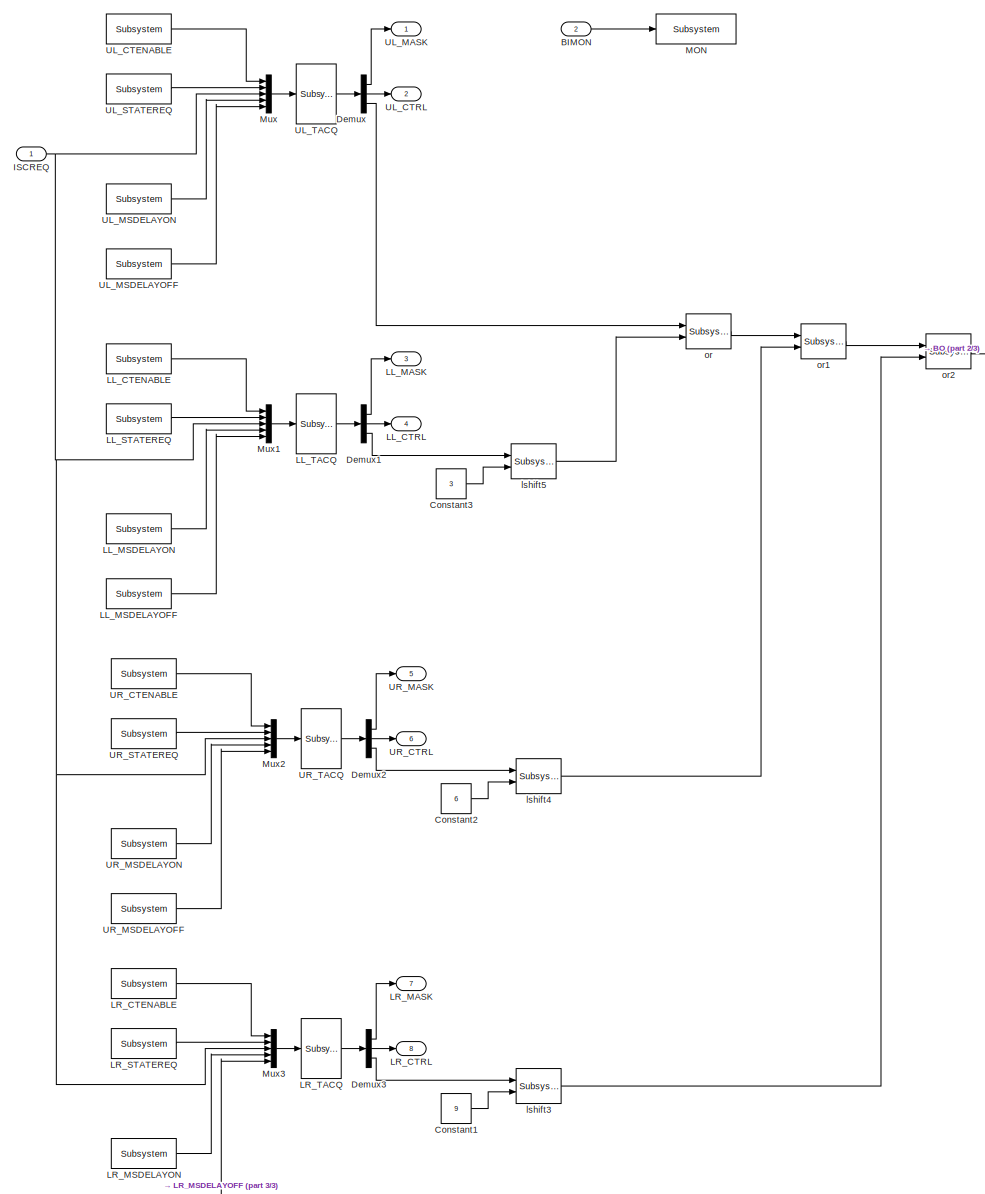
[diagram: TACQ_BS_M2_BIO_MASTER - part 1/3, most of the canvas]
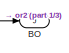
[diagram: TACQ_BS_M2_BIO_MASTER - part 2/3, top right region]
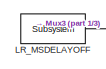
[diagram: TACQ_BS_M2_BIO_MASTER - part 3/3, bottom left region]
BLOCK [SubSystem] TACQ_BS_M2_BIO_MASTER
  Ports = [2, 9]
  RequestExecContextInheritance = off
  SID = 151
  Variant = off
BLOCK [Inport] TACQ_BS_M2_BIO_MASTER/BIMON
  IconDisplay = Port number
  Port = 2
  SID = 153
BLOCK [Outport] TACQ_BS_M2_BIO_MASTER/BO
  IconDisplay = Port number
  Port = 9
  SID = 171
BLOCK [Constant] TACQ_BS_M2_BIO_MASTER/Constant1
  SID = 203
  Value = 9
BLOCK [Constant] TACQ_BS_M2_BIO_MASTER/Constant2
  SID = 204
  Value = 6
BLOCK [Constant] TACQ_BS_M2_BIO_MASTER/Constant3
  SID = 206
  Value = 3
BLOCK [Demux] TACQ_BS_M2_BIO_MASTER/Demux
  DisplayOption = bar
  Outputs = 3
  Ports = [1, 3]
  SID = 156
BLOCK [Demux] TACQ_BS_M2_BIO_MASTER/Demux1
  DisplayOption = bar
  Outputs = 3
  Ports = [1, 3]
  SID = 174
BLOCK [Demux] TACQ_BS_M2_BIO_MASTER/Demux2
  DisplayOption = bar
  Outputs = 3
  Ports = [1, 3]
  SID = 184
BLOCK [Demux] TACQ_BS_M2_BIO_MASTER/Demux3
  DisplayOption = bar
  Outputs = 3
  Ports = [1, 3]
  SID = 194
BLOCK [Inport] TACQ_BS_M2_BIO_MASTER/ISCREQ
  IconDisplay = Port number
  SID = 152
BLOCK [Reference] TACQ_BS_M2_BIO_MASTER/LL_CTENABLE  REF=cdsEpicsIn/Subsystem
  AttributesFormatString = %<Tag>
  Ports = [0, 1]
  SID = 173
  SourceBlock = cdsEpicsIn/Subsystem
  SourceType = SubSystem
  Tag = cdsEpicsIn
BLOCK [Outport] TACQ_BS_M2_BIO_MASTER/LL_CTRL
  IconDisplay = Port number
  Port = 4
  SID = 181
BLOCK [Outport] TACQ_BS_M2_BIO_MASTER/LL_MASK
  IconDisplay = Port number
  Port = 3
  SID = 180
BLOCK [Reference] TACQ_BS_M2_BIO_MASTER/LL_MSDELAYOFF  REF=cdsEpicsIn/Subsystem
  AttributesFormatString = %<Tag>
  Ports = [0, 1]
  SID = 175
  SourceBlock = cdsEpicsIn/Subsystem
  SourceType = SubSystem
  Tag = cdsEpicsIn
BLOCK [Reference] TACQ_BS_M2_BIO_MASTER/LL_MSDELAYON  REF=cdsEpicsIn/Subsystem
  AttributesFormatString = %<Tag>
  Ports = [0, 1]
  SID = 176
  SourceBlock = cdsEpicsIn/Subsystem
  SourceType = SubSystem
  Tag = cdsEpicsIn
BLOCK [Reference] TACQ_BS_M2_BIO_MASTER/LL_STATEREQ  REF=cdsEpicsIn/Subsystem
  AttributesFormatString = %<Tag>
  Ports = [0, 1]
  SID = 178
  SourceBlock = cdsEpicsIn/Subsystem
  SourceType = SubSystem
  Tag = cdsEpicsIn
BLOCK [Reference] TACQ_BS_M2_BIO_MASTER/LL_TACQ  REF=cdsFunctionCall/Subsystem
  AttributesFormatString = %<Tag>
  Description = inline TACQ inline TACQ <path>
  Ports = [1, 1]
  SID = 179
  SourceBlock = cdsFunctionCall/Subsystem
  SourceType = SubSystem
  Tag = cdsFunctionCall
BLOCK [Reference] TACQ_BS_M2_BIO_MASTER/LR_CTENABLE  REF=cdsEpicsIn/Subsystem
  AttributesFormatString = %<Tag>
  Ports = [0, 1]
  SID = 193
  SourceBlock = cdsEpicsIn/Subsystem
  SourceType = SubSystem
  Tag = cdsEpicsIn
BLOCK [Outport] TACQ_BS_M2_BIO_MASTER/LR_CTRL
  IconDisplay = Port number
  Port = 8
  SID = 201
BLOCK [Outport] TACQ_BS_M2_BIO_MASTER/LR_MASK
  IconDisplay = Port number
  Port = 7
  SID = 200
BLOCK [Reference] TACQ_BS_M2_BIO_MASTER/LR_MSDELAYOFF  REF=cdsEpicsIn/Subsystem
  AttributesFormatString = %<Tag>
  Ports = [0, 1]
  SID = 195
  SourceBlock = cdsEpicsIn/Subsystem
  SourceType = SubSystem
  Tag = cdsEpicsIn
BLOCK [Reference] TACQ_BS_M2_BIO_MASTER/LR_MSDELAYON  REF=cdsEpicsIn/Subsystem
  AttributesFormatString = %<Tag>
  Ports = [0, 1]
  SID = 196
  SourceBlock = cdsEpicsIn/Subsystem
  SourceType = SubSystem
  Tag = cdsEpicsIn
BLOCK [Reference] TACQ_BS_M2_BIO_MASTER/LR_STATEREQ  REF=cdsEpicsIn/Subsystem
  AttributesFormatString = %<Tag>
  Ports = [0, 1]
  SID = 198
  SourceBlock = cdsEpicsIn/Subsystem
  SourceType = SubSystem
  Tag = cdsEpicsIn
BLOCK [Reference] TACQ_BS_M2_BIO_MASTER/LR_TACQ  REF=cdsFunctionCall/Subsystem
  AttributesFormatString = %<Tag>
  Description = inline TACQ $SUS_SRC/CD_STATE_MACHINE.c
  Ports = [1, 1]
  SID = 199
  SourceBlock = cdsFunctionCall/Subsystem
  SourceType = SubSystem
  Tag = cdsFunctionCall
BLOCK [Reference] TACQ_BS_M2_BIO_MASTER/MON  REF=cdsEpicsOut/Subsystem
  AttributesFormatString = %<Tag>
  Ports = [1, 1]
  SID = 157
  SourceBlock = cdsEpicsOut/Subsystem
  SourceType = SubSystem
  Tag = cdsEpicsOutput
BLOCK [Mux] TACQ_BS_M2_BIO_MASTER/Mux
  DisplayOption = bar
  Inputs = 5
  Ports = [5, 1]
  SID = 160
BLOCK [Mux] TACQ_BS_M2_BIO_MASTER/Mux1
  DisplayOption = bar
  Inputs = 5
  Ports = [5, 1]
  SID = 177
BLOCK [Mux] TACQ_BS_M2_BIO_MASTER/Mux2
  DisplayOption = bar
  Inputs = 5
  Ports = [5, 1]
  SID = 187
BLOCK [Mux] TACQ_BS_M2_BIO_MASTER/Mux3
  DisplayOption = bar
  Inputs = 5
  Ports = [5, 1]
  SID = 197
BLOCK [Reference] TACQ_BS_M2_BIO_MASTER/UL_CTENABLE  REF=cdsEpicsIn/Subsystem
  AttributesFormatString = %<Tag>
  Ports = [0, 1]
  SID = 154
  SourceBlock = cdsEpicsIn/Subsystem
  SourceType = SubSystem
  Tag = cdsEpicsIn
BLOCK [Outport] TACQ_BS_M2_BIO_MASTER/UL_CTRL
  IconDisplay = Port number
  Port = 2
  SID = 170
BLOCK [Outport] TACQ_BS_M2_BIO_MASTER/UL_MASK
  IconDisplay = Port number
  SID = 169
BLOCK [Reference] TACQ_BS_M2_BIO_MASTER/UL_MSDELAYOFF  REF=cdsEpicsIn/Subsystem
  AttributesFormatString = %<Tag>
  Ports = [0, 1]
  SID = 158
  SourceBlock = cdsEpicsIn/Subsystem
  SourceType = SubSystem
  Tag = cdsEpicsIn
BLOCK [Reference] TACQ_BS_M2_BIO_MASTER/UL_MSDELAYON  REF=cdsEpicsIn/Subsystem
  AttributesFormatString = %<Tag>
  Ports = [0, 1]
  SID = 159
  SourceBlock = cdsEpicsIn/Subsystem
  SourceType = SubSystem
  Tag = cdsEpicsIn
BLOCK [Reference] TACQ_BS_M2_BIO_MASTER/UL_STATEREQ  REF=cdsEpicsIn/Subsystem
  AttributesFormatString = %<Tag>
  Ports = [0, 1]
  SID = 161
  SourceBlock = cdsEpicsIn/Subsystem
  SourceType = SubSystem
  Tag = cdsEpicsIn
BLOCK [Reference] TACQ_BS_M2_BIO_MASTER/UL_TACQ  REF=cdsFunctionCall/Subsystem
  AttributesFormatString = %<Tag>
  Description = inline TACQ inline TACQ <path>
  Ports = [1, 1]
  SID = 162
  SourceBlock = cdsFunctionCall/Subsystem
  SourceType = SubSystem
  Tag = cdsFunctionCall
BLOCK [Reference] TACQ_BS_M2_BIO_MASTER/UR_CTENABLE  REF=cdsEpicsIn/Subsystem
  AttributesFormatString = %<Tag>
  Ports = [0, 1]
  SID = 183
  SourceBlock = cdsEpicsIn/Subsystem
  SourceType = SubSystem
  Tag = cdsEpicsIn
BLOCK [Outport] TACQ_BS_M2_BIO_MASTER/UR_CTRL
  IconDisplay = Port number
  Port = 6
  SID = 191
BLOCK [Outport] TACQ_BS_M2_BIO_MASTER/UR_MASK
  IconDisplay = Port number
  Port = 5
  SID = 190
BLOCK [Reference] TACQ_BS_M2_BIO_MASTER/UR_MSDELAYOFF  REF=cdsEpicsIn/Subsystem
  AttributesFormatString = %<Tag>
  Ports = [0, 1]
  SID = 185
  SourceBlock = cdsEpicsIn/Subsystem
  SourceType = SubSystem
  Tag = cdsEpicsIn
BLOCK [Reference] TACQ_BS_M2_BIO_MASTER/UR_MSDELAYON  REF=cdsEpicsIn/Subsystem
  AttributesFormatString = %<Tag>
  Ports = [0, 1]
  SID = 186
  SourceBlock = cdsEpicsIn/Subsystem
  SourceType = SubSystem
  Tag = cdsEpicsIn
BLOCK [Reference] TACQ_BS_M2_BIO_MASTER/UR_STATEREQ  REF=cdsEpicsIn/Subsystem
  AttributesFormatString = %<Tag>
  Ports = [0, 1]
  SID = 188
  SourceBlock = cdsEpicsIn/Subsystem
  SourceType = SubSystem
  Tag = cdsEpicsIn
BLOCK [Reference] TACQ_BS_M2_BIO_MASTER/UR_TACQ  REF=cdsFunctionCall/Subsystem
  AttributesFormatString = %<Tag>
  Description = inline TACQ inline TACQ <path>
  Ports = [1, 1]
  SID = 189
  SourceBlock = cdsFunctionCall/Subsystem
  SourceType = SubSystem
  Tag = cdsFunctionCall
BLOCK [Reference] TACQ_BS_M2_BIO_MASTER/lshift3  REF=cdsBitwise/Subsystem
  AttributesFormatString = %<Tag>
  Ports = [2, 1]
  SID = 202
  SourceBlock = cdsBitwise/Subsystem
  SourceType = SubSystem
  Tag = cdsBitwise
BLOCK [Reference] TACQ_BS_M2_BIO_MASTER/lshift4  REF=cdsBitwise/Subsystem
  AttributesFormatString = %<Tag>
  Ports = [2, 1]
  SID = 205
  SourceBlock = cdsBitwise/Subsystem
  SourceType = SubSystem
  Tag = cdsBitwise
BLOCK [Reference] TACQ_BS_M2_BIO_MASTER/lshift5  REF=cdsBitwise/Subsystem
  AttributesFormatString = %<Tag>
  Ports = [2, 1]
  SID = 207
  SourceBlock = cdsBitwise/Subsystem
  SourceType = SubSystem
  Tag = cdsBitwise
BLOCK [Reference] TACQ_BS_M2_BIO_MASTER/or  REF=cdsBitwise/Subsystem
  AttributesFormatString = %<Tag>
  Ports = [2, 1]
  SID = 166
  SourceBlock = cdsBitwise/Subsystem
  SourceType = SubSystem
  Tag = cdsBitwise
BLOCK [Reference] TACQ_BS_M2_BIO_MASTER/or1  REF=cdsBitwise/Subsystem
  AttributesFormatString = %<Tag>
  Ports = [2, 1]
  SID = 167
  SourceBlock = cdsBitwise/Subsystem
  SourceType = SubSystem
  Tag = cdsBitwise
BLOCK [Reference] TACQ_BS_M2_BIO_MASTER/or2  REF=cdsBitwise/Subsystem
  AttributesFormatString = %<Tag>
  Ports = [2, 1]
  SID = 168
  SourceBlock = cdsBitwise/Subsystem
  SourceType = SubSystem
  Tag = cdsBitwise
BLOCK [SubSystem] TACQ_M2_BIO_MASTER
  Ports = [2, 3]
  RequestExecContextInheritance = off
  SID = 127
  Variant = off
BLOCK [Inport] TACQ_M2_BIO_MASTER/BIMON
  IconDisplay = Port number
  Port = 2
  SID = 129
BLOCK [Outport] TACQ_M2_BIO_MASTER/BO
  IconDisplay = Port number
  Port = 3
  SID = 147
BLOCK [Reference] TACQ_M2_BIO_MASTER/CTENABLE  REF=cdsEpicsIn/Subsystem
  AttributesFormatString = %<Tag>
  FunctionWithSeparateData = off
  Ports = [0, 1]
  RTWMemSecDataConstants = Inherit from model
  RTWMemSecDataInternal = Inherit from model
  RTWMemSecDataParameters = Inherit from model
  RTWMemSecFuncExecute = Inherit from model
  RTWMemSecFuncInitTerm = Inherit from model
  SID = 130
  ShowPortLabels = FromPortIcon
  SourceBlock = cdsEpicsIn/Subsystem
  SourceType = SubSystem
  SystemSampleTime = -1
  Tag = cdsEpicsIn
BLOCK [Outport] TACQ_M2_BIO_MASTER/CTRL
  IconDisplay = Port number
  Port = 2
  SID = 146
BLOCK [Constant] TACQ_M2_BIO_MASTER/Constant
  SID = 131
  Value = 3
BLOCK [Demux] TACQ_M2_BIO_MASTER/Demux
  DisplayOption = bar
  Outputs = 3
  Ports = [1, 3]
  SID = 132
BLOCK [Inport] TACQ_M2_BIO_MASTER/ISCREQ
  IconDisplay = Port number
  SID = 128
BLOCK [Outport] TACQ_M2_BIO_MASTER/MASK
  IconDisplay = Port number
  SID = 145
BLOCK [Reference] TACQ_M2_BIO_MASTER/MON  REF=cdsEpicsOut/Subsystem
  AttributesFormatString = %<Tag>
  FunctionWithSeparateData = off
  Ports = [1, 1]
  RTWMemSecDataConstants = Inherit from model
  RTWMemSecDataInternal = Inherit from model
  RTWMemSecDataParameters = Inherit from model
  RTWMemSecFuncExecute = Inherit from model
  RTWMemSecFuncInitTerm = Inherit from model
  SID = 133
  ShowPortLabels = FromPortIcon
  SourceBlock = cdsEpicsOut/Subsystem
  SourceType = SubSystem
  SystemSampleTime = -1
  Tag = cdsEpicsOutput
BLOCK [Reference] TACQ_M2_BIO_MASTER/MSDELAYOFF  REF=cdsEpicsIn/Subsystem
  AttributesFormatString = %<Tag>
  FunctionWithSeparateData = off
  Ports = [0, 1]
  RTWMemSecDataConstants = Inherit from model
  RTWMemSecDataInternal = Inherit from model
  RTWMemSecDataParameters = Inherit from model
  RTWMemSecFuncExecute = Inherit from model
  RTWMemSecFuncInitTerm = Inherit from model
  SID = 134
  ShowPortLabels = FromPortIcon
  SourceBlock = cdsEpicsIn/Subsystem
  SourceType = SubSystem
  SystemSampleTime = -1
  Tag = cdsEpicsIn
BLOCK [Reference] TACQ_M2_BIO_MASTER/MSDELAYON  REF=cdsEpicsIn/Subsystem
  AttributesFormatString = %<Tag>
  FunctionWithSeparateData = off
  Ports = [0, 1]
  RTWMemSecDataConstants = Inherit from model
  RTWMemSecDataInternal = Inherit from model
  RTWMemSecDataParameters = Inherit from model
  RTWMemSecFuncExecute = Inherit from model
  RTWMemSecFuncInitTerm = Inherit from model
  SID = 135
  ShowPortLabels = FromPortIcon
  SourceBlock = cdsEpicsIn/Subsystem
  SourceType = SubSystem
  SystemSampleTime = -1
  Tag = cdsEpicsIn
BLOCK [Mux] TACQ_M2_BIO_MASTER/Mux
  DisplayOption = bar
  Inputs = 5
  Ports = [5, 1]
  SID = 136
BLOCK [Reference] TACQ_M2_BIO_MASTER/STATEREQ  REF=cdsEpicsIn/Subsystem
  AttributesFormatString = %<Tag>
  FunctionWithSeparateData = off
  Ports = [0, 1]
  RTWMemSecDataConstants = Inherit from model
  RTWMemSecDataInternal = Inherit from model
  RTWMemSecDataParameters = Inherit from model
  RTWMemSecFuncExecute = Inherit from model
  RTWMemSecFuncInitTerm = Inherit from model
  SID = 137
  ShowPortLabels = FromPortIcon
  SourceBlock = cdsEpicsIn/Subsystem
  SourceType = SubSystem
  SystemSampleTime = -1
  Tag = cdsEpicsIn
BLOCK [Reference] TACQ_M2_BIO_MASTER/TACQ  REF=cdsFunctionCall/Subsystem
  AttributesFormatString = %<Tag>
  Description = inline TACQ_M2 $SUS_SRC/CD_STATE_MACHINE.c
  FunctionWithSeparateData = off
  Ports = [1, 1]
  RTWMemSecDataConstants = Inherit from model
  RTWMemSecDataInternal = Inherit from model
  RTWMemSecDataParameters = Inherit from model
  RTWMemSecFuncExecute = Inherit from model
  RTWMemSecFuncInitTerm = Inherit from model
  SID = 138
  ShowPortLabels = FromPortIcon
  SourceBlock = cdsFunctionCall/Subsystem
  SourceType = SubSystem
  SystemSampleTime = -1
  Tag = cdsFunctionCall
BLOCK [Reference] TACQ_M2_BIO_MASTER/lshift  REF=cdsBitwise/Subsystem
  AttributesFormatString = %<Tag>
  FunctionWithSeparateData = off
  Ports = [2, 1]
  RTWMemSecDataConstants = Inherit from model
  RTWMemSecDataInternal = Inherit from model
  RTWMemSecDataParameters = Inherit from model
  RTWMemSecFuncExecute = Inherit from model
  RTWMemSecFuncInitTerm = Inherit from model
  SID = 139
  ShowPortLabels = FromPortIcon
  SourceBlock = cdsBitwise/Subsystem
  SourceType = SubSystem
  SystemSampleTime = -1
  Tag = cdsBitwise
BLOCK [Reference] TACQ_M2_BIO_MASTER/lshift1  REF=cdsBitwise/Subsystem
  AttributesFormatString = %<Tag>
  FunctionWithSeparateData = off
  Ports = [2, 1]
  RTWMemSecDataConstants = Inherit from model
  RTWMemSecDataInternal = Inherit from model
  RTWMemSecDataParameters = Inherit from model
  RTWMemSecFuncExecute = Inherit from model
  RTWMemSecFuncInitTerm = Inherit from model
  SID = 140
  ShowPortLabels = FromPortIcon
  SourceBlock = cdsBitwise/Subsystem
  SourceType = SubSystem
  SystemSampleTime = -1
  Tag = cdsBitwise
BLOCK [Reference] TACQ_M2_BIO_MASTER/lshift2  REF=cdsBitwise/Subsystem
  AttributesFormatString = %<Tag>
  FunctionWithSeparateData = off
  Ports = [2, 1]
  RTWMemSecDataConstants = Inherit from model
  RTWMemSecDataInternal = Inherit from model
  RTWMemSecDataParameters = Inherit from model
  RTWMemSecFuncExecute = Inherit from model
  RTWMemSecFuncInitTerm = Inherit from model
  SID = 141
  ShowPortLabels = FromPortIcon
  SourceBlock = cdsBitwise/Subsystem
  SourceType = SubSystem
  SystemSampleTime = -1
  Tag = cdsBitwise
BLOCK [Reference] TACQ_M2_BIO_MASTER/or  REF=cdsBitwise/Subsystem
  AttributesFormatString = %<Tag>
  FunctionWithSeparateData = off
  Ports = [2, 1]
  RTWMemSecDataConstants = Inherit from model
  RTWMemSecDataInternal = Inherit from model
  RTWMemSecDataParameters = Inherit from model
  RTWMemSecFuncExecute = Inherit from model
  RTWMemSecFuncInitTerm = Inherit from model
  SID = 142
  ShowPortLabels = FromPortIcon
  SourceBlock = cdsBitwise/Subsystem
  SourceType = SubSystem
  SystemSampleTime = -1
  Tag = cdsBitwise
BLOCK [Reference] TACQ_M2_BIO_MASTER/or1  REF=cdsBitwise/Subsystem
  AttributesFormatString = %<Tag>
  FunctionWithSeparateData = off
  Ports = [2, 1]
  RTWMemSecDataConstants = Inherit from model
  RTWMemSecDataInternal = Inherit from model
  RTWMemSecDataParameters = Inherit from model
  RTWMemSecFuncExecute = Inherit from model
  RTWMemSecFuncInitTerm = Inherit from model
  SID = 143
  ShowPortLabels = FromPortIcon
  SourceBlock = cdsBitwise/Subsystem
  SourceType = SubSystem
  SystemSampleTime = -1
  Tag = cdsBitwise
BLOCK [Reference] TACQ_M2_BIO_MASTER/or2  REF=cdsBitwise/Subsystem
  AttributesFormatString = %<Tag>
  FunctionWithSeparateData = off
  Ports = [2, 1]
  RTWMemSecDataConstants = Inherit from model
  RTWMemSecDataInternal = Inherit from model
  RTWMemSecDataParameters = Inherit from model
  RTWMemSecFuncExecute = Inherit from model
  RTWMemSecFuncInitTerm = Inherit from model
  SID = 144
  ShowPortLabels = FromPortIcon
  SourceBlock = cdsBitwise/Subsystem
  SourceType = SubSystem
  SystemSampleTime = -1
  Tag = cdsBitwise
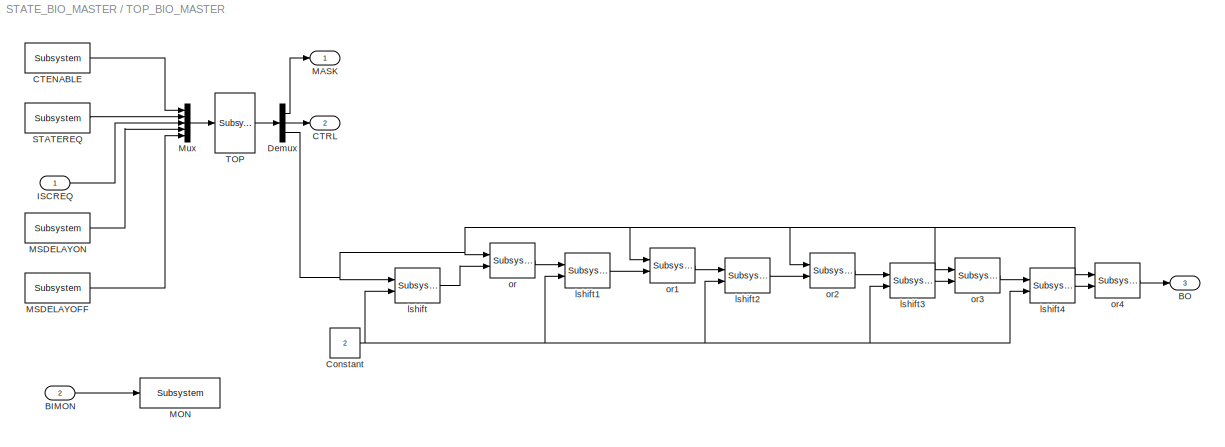
BLOCK [SubSystem] TOP_BIO_MASTER
  Ports = [2, 3]
  RequestExecContextInheritance = off
  SID = 28
  Variant = off
BLOCK [Inport] TOP_BIO_MASTER/BIMON
  IconDisplay = Port number
  Port = 2
  SID = 30
BLOCK [Outport] TOP_BIO_MASTER/BO
  IconDisplay = Port number
  Port = 3
  SID = 40
BLOCK [Reference] TOP_BIO_MASTER/CTENABLE  REF=cdsEpicsIn/Subsystem
  AttributesFormatString = %<Tag>
  Ports = [0, 1]
  SID = 31
  SourceBlock = cdsEpicsIn/Subsystem
  SourceType = SubSystem
  Tag = cdsEpicsIn
BLOCK [Outport] TOP_BIO_MASTER/CTRL
  IconDisplay = Port number
  Port = 2
  SID = 39
BLOCK [Constant] TOP_BIO_MASTER/Constant
  SID = 64
  Value = 2
BLOCK [Demux] TOP_BIO_MASTER/Demux
  DisplayOption = bar
  Outputs = 3
  Ports = [1, 3]
  SID = 32
BLOCK [Inport] TOP_BIO_MASTER/ISCREQ
  IconDisplay = Port number
  SID = 29
BLOCK [Outport] TOP_BIO_MASTER/MASK
  IconDisplay = Port number
  SID = 38
BLOCK [Reference] TOP_BIO_MASTER/MON  REF=cdsEpicsOut/Subsystem
  AttributesFormatString = %<Tag>
  Ports = [1, 1]
  SID = 33
  SourceBlock = cdsEpicsOut/Subsystem
  SourceType = SubSystem
  Tag = cdsEpicsOutput
BLOCK [Reference] TOP_BIO_MASTER/MSDELAYOFF  REF=cdsEpicsIn/Subsystem
  AttributesFormatString = %<Tag>
  Ports = [0, 1]
  SID = 57
  SourceBlock = cdsEpicsIn/Subsystem
  SourceType = SubSystem
  Tag = cdsEpicsIn
BLOCK [Reference] TOP_BIO_MASTER/MSDELAYON  REF=cdsEpicsIn/Subsystem
  AttributesFormatString = %<Tag>
  Ports = [0, 1]
  SID = 34
  SourceBlock = cdsEpicsIn/Subsystem
  SourceType = SubSystem
  Tag = cdsEpicsIn
BLOCK [Mux] TOP_BIO_MASTER/Mux
  DisplayOption = bar
  Inputs = 5
  Ports = [5, 1]
  SID = 35
BLOCK [Reference] TOP_BIO_MASTER/STATEREQ  REF=cdsEpicsIn/Subsystem
  AttributesFormatString = %<Tag>
  Ports = [0, 1]
  SID = 36
  SourceBlock = cdsEpicsIn/Subsystem
  SourceType = SubSystem
  Tag = cdsEpicsIn
BLOCK [Reference] TOP_BIO_MASTER/TOP  REF=cdsFunctionCall/Subsystem
  AttributesFormatString = %<Tag>
  Description = inline TOP <path>
  Ports = [1, 1]
  SID = 37
  SourceBlock = cdsFunctionCall/Subsystem
  SourceType = SubSystem
  Tag = cdsFunctionCall
BLOCK [Reference] TOP_BIO_MASTER/lshift  REF=cdsBitwise/Subsystem
  AttributesFormatString = %<Tag>
  Ports = [2, 1]
  SID = 63
  SourceBlock = cdsBitwise/Subsystem
  SourceType = SubSystem
  Tag = cdsBitwise
BLOCK [Reference] TOP_BIO_MASTER/lshift1  REF=cdsBitwise/Subsystem
  AttributesFormatString = %<Tag>
  Ports = [2, 1]
  SID = 67
  SourceBlock = cdsBitwise/Subsystem
  SourceType = SubSystem
  Tag = cdsBitwise
BLOCK [Reference] TOP_BIO_MASTER/lshift2  REF=cdsBitwise/Subsystem
  AttributesFormatString = %<Tag>
  Ports = [2, 1]
  SID = 68
  SourceBlock = cdsBitwise/Subsystem
  SourceType = SubSystem
  Tag = cdsBitwise
BLOCK [Reference] TOP_BIO_MASTER/lshift3  REF=cdsBitwise/Subsystem
  AttributesFormatString = %<Tag>
  Ports = [2, 1]
  SID = 70
  SourceBlock = cdsBitwise/Subsystem
  SourceType = SubSystem
  Tag = cdsBitwise
BLOCK [Reference] TOP_BIO_MASTER/lshift4  REF=cdsBitwise/Subsystem
  AttributesFormatString = %<Tag>
  Ports = [2, 1]
  SID = 72
  SourceBlock = cdsBitwise/Subsystem
  SourceType = SubSystem
  Tag = cdsBitwise
BLOCK [Reference] TOP_BIO_MASTER/or  REF=cdsBitwise/Subsystem
  AttributesFormatString = %<Tag>
  Ports = [2, 1]
  SID = 65
  SourceBlock = cdsBitwise/Subsystem
  SourceType = SubSystem
  Tag = cdsBitwise
BLOCK [Reference] TOP_BIO_MASTER/or1  REF=cdsBitwise/Subsystem
  AttributesFormatString = %<Tag>
  Ports = [2, 1]
  SID = 66
  SourceBlock = cdsBitwise/Subsystem
  SourceType = SubSystem
  Tag = cdsBitwise
BLOCK [Reference] TOP_BIO_MASTER/or2  REF=cdsBitwise/Subsystem
  AttributesFormatString = %<Tag>
  Ports = [2, 1]
  SID = 69
  SourceBlock = cdsBitwise/Subsystem
  SourceType = SubSystem
  Tag = cdsBitwise
BLOCK [Reference] TOP_BIO_MASTER/or3  REF=cdsBitwise/Subsystem
  AttributesFormatString = %<Tag>
  Ports = [2, 1]
  SID = 71
  SourceBlock = cdsBitwise/Subsystem
  SourceType = SubSystem
  Tag = cdsBitwise
BLOCK [Reference] TOP_BIO_MASTER/or4  REF=cdsBitwise/Subsystem
  AttributesFormatString = %<Tag>
  Ports = [2, 1]
  SID = 73
  SourceBlock = cdsBitwise/Subsystem
  SourceType = SubSystem
  Tag = cdsBitwise
BLOCK [SubSystem] UIM_BIO_MASTER
  Ports = [2, 3]
  RequestExecContextInheritance = off
  SID = 208
  Variant = off
BLOCK [Inport] UIM_BIO_MASTER/BIMON
  IconDisplay = Port number
  Port = 2
  SID = 210
BLOCK [Outport] UIM_BIO_MASTER/BO
  IconDisplay = Port number
  Port = 3
  SID = 228
BLOCK [Reference] UIM_BIO_MASTER/CTENABLE  REF=cdsEpicsIn/Subsystem
  AttributesFormatString = %<Tag>
  Ports = [0, 1]
  SID = 211
  SourceBlock = cdsEpicsIn/Subsystem
  SourceType = SubSystem
  Tag = cdsEpicsIn
BLOCK [Outport] UIM_BIO_MASTER/CTRL
  IconDisplay = Port number
  Port = 2
  SID = 227
BLOCK [Constant] UIM_BIO_MASTER/Constant
  SID = 212
  Value = 4
BLOCK [Demux] UIM_BIO_MASTER/Demux
  DisplayOption = bar
  Outputs = 3
  Ports = [1, 3]
  SID = 213
BLOCK [Inport] UIM_BIO_MASTER/ISCREQ
  IconDisplay = Port number
  SID = 209
BLOCK [Reference] UIM_BIO_MASTER/KAGRA_CD  REF=cdsFunctionCall/Subsystem
  AttributesFormatString = %<Tag>
  Description = inline KAGRA_CD <path>
  Ports = [1, 1]
  SID = 219
  SourceBlock = cdsFunctionCall/Subsystem
  SourceType = SubSystem
  Tag = cdsFunctionCall
BLOCK [Outport] UIM_BIO_MASTER/MASK
  IconDisplay = Port number
  SID = 226
BLOCK [Reference] UIM_BIO_MASTER/MON  REF=cdsEpicsOut/Subsystem
  AttributesFormatString = %<Tag>
  Ports = [1, 1]
  SID = 214
  SourceBlock = cdsEpicsOut/Subsystem
  SourceType = SubSystem
  Tag = cdsEpicsOutput
BLOCK [Reference] UIM_BIO_MASTER/MSDELAYOFF  REF=cdsEpicsIn/Subsystem
  AttributesFormatString = %<Tag>
  Ports = [0, 1]
  SID = 215
  SourceBlock = cdsEpicsIn/Subsystem
  SourceType = SubSystem
  Tag = cdsEpicsIn
BLOCK [Reference] UIM_BIO_MASTER/MSDELAYON  REF=cdsEpicsIn/Subsystem
  AttributesFormatString = %<Tag>
  Ports = [0, 1]
  SID = 216
  SourceBlock = cdsEpicsIn/Subsystem
  SourceType = SubSystem
  Tag = cdsEpicsIn
BLOCK [Mux] UIM_BIO_MASTER/Mux
  DisplayOption = bar
  Inputs = 5
  Ports = [5, 1]
  SID = 217
BLOCK [Reference] UIM_BIO_MASTER/STATEREQ  REF=cdsEpicsIn/Subsystem
  AttributesFormatString = %<Tag>
  Ports = [0, 1]
  SID = 218
  SourceBlock = cdsEpicsIn/Subsystem
  SourceType = SubSystem
  Tag = cdsEpicsIn
BLOCK [Reference] UIM_BIO_MASTER/lshift  REF=cdsBitwise/Subsystem
  AttributesFormatString = %<Tag>
  Ports = [2, 1]
  SID = 220
  SourceBlock = cdsBitwise/Subsystem
  SourceType = SubSystem
  Tag = cdsBitwise
BLOCK [Reference] UIM_BIO_MASTER/lshift1  REF=cdsBitwise/Subsystem
  AttributesFormatString = %<Tag>
  Ports = [2, 1]
  SID = 221
  SourceBlock = cdsBitwise/Subsystem
  SourceType = SubSystem
  Tag = cdsBitwise
BLOCK [Reference] UIM_BIO_MASTER/lshift2  REF=cdsBitwise/Subsystem
  AttributesFormatString = %<Tag>
  Ports = [2, 1]
  SID = 222
  SourceBlock = cdsBitwise/Subsystem
  SourceType = SubSystem
  Tag = cdsBitwise
BLOCK [Reference] UIM_BIO_MASTER/lshift3  REF=cdsBitwise/Subsystem
  AttributesFormatString = %<Tag>
  Ports = [2, 1]
  SID = 229
  SourceBlock = cdsBitwise/Subsystem
  SourceType = SubSystem
  Tag = cdsBitwise
BLOCK [Reference] UIM_BIO_MASTER/or  REF=cdsBitwise/Subsystem
  AttributesFormatString = %<Tag>
  Ports = [2, 1]
  SID = 223
  SourceBlock = cdsBitwise/Subsystem
  SourceType = SubSystem
  Tag = cdsBitwise
BLOCK [Reference] UIM_BIO_MASTER/or1  REF=cdsBitwise/Subsystem
  AttributesFormatString = %<Tag>
  Ports = [2, 1]
  SID = 224
  SourceBlock = cdsBitwise/Subsystem
  SourceType = SubSystem
  Tag = cdsBitwise
BLOCK [Reference] UIM_BIO_MASTER/or2  REF=cdsBitwise/Subsystem
  AttributesFormatString = %<Tag>
  Ports = [2, 1]
  SID = 225
  SourceBlock = cdsBitwise/Subsystem
  SourceType = SubSystem
  Tag = cdsBitwise
BLOCK [Reference] UIM_BIO_MASTER/or3  REF=cdsBitwise/Subsystem
  AttributesFormatString = %<Tag>
  Ports = [2, 1]
  SID = 230
  SourceBlock = cdsBitwise/Subsystem
  SourceType = SubSystem
  Tag = cdsBitwise
ANNOTATION (root): $HeadURL: https://redoubt.ligo-wa.caltech.edu/svn/cds_user_apps/trunk/sus/common/models/STATE_BIO_MASTER.mdl $
ANNOTATION (root): For use with Mode cleaner triple (HSTS) models aka MC_MASTER\n\n\n\n\n\n\n\n\n\n.
ANNOTATION (root): SVN $Id: STATE_BIO_MASTER.mdl 6026 2013-10-22 23:48:25Z <email> $
LINE PUM_BIO_MASTER/BIMON:1 -> PUM_BIO_MASTER/MON:1
LINE PUM_BIO_MASTER/CTENABLE:1 -> PUM_BIO_MASTER/Mux:1
NET PUM_BIO_MASTER/Constant:1 -> PUM_BIO_MASTER/lshift1:2, PUM_BIO_MASTER/lshift2:2, PUM_BIO_MASTER/lshift:2
LINE PUM_BIO_MASTER/Demux:1 -> PUM_BIO_MASTER/MASK:1
LINE PUM_BIO_MASTER/Demux:2 -> PUM_BIO_MASTER/CTRL:1
NET PUM_BIO_MASTER/Demux:3 -> PUM_BIO_MASTER/lshift:1, PUM_BIO_MASTER/or1:1, PUM_BIO_MASTER/or2:1, PUM_BIO_MASTER/or:1
LINE PUM_BIO_MASTER/ISCREQ:1 -> PUM_BIO_MASTER/Mux:3
LINE PUM_BIO_MASTER/MSDELAYOFF:1 -> PUM_BIO_MASTER/Mux:5
LINE PUM_BIO_MASTER/MSDELAYON:1 -> PUM_BIO_MASTER/Mux:4
LINE PUM_BIO_MASTER/Mux:1 -> PUM_BIO_MASTER/PUM:1
LINE PUM_BIO_MASTER/PUM:1 -> PUM_BIO_MASTER/Demux:1
LINE PUM_BIO_MASTER/RMSRESET:1 -> PUM_BIO_MASTER/Mux:6
LINE PUM_BIO_MASTER/STATEREQ:1 -> PUM_BIO_MASTER/Mux:2
LINE PUM_BIO_MASTER/lshift1:1 -> PUM_BIO_MASTER/or1:2
LINE PUM_BIO_MASTER/lshift2:1 -> PUM_BIO_MASTER/or2:2
LINE PUM_BIO_MASTER/lshift:1 -> PUM_BIO_MASTER/or:2
LINE PUM_BIO_MASTER/or1:1 -> PUM_BIO_MASTER/lshift2:1
LINE PUM_BIO_MASTER/or2:1 -> PUM_BIO_MASTER/BO:1
LINE PUM_BIO_MASTER/or:1 -> PUM_BIO_MASTER/lshift1:1
LINE SINGLE_BIO_MASTER/BIMON:1 -> SINGLE_BIO_MASTER/MON:1
LINE SINGLE_BIO_MASTER/CTENABLE:1 -> SINGLE_BIO_MASTER/Mux:1
NET SINGLE_BIO_MASTER/Constant:1 -> SINGLE_BIO_MASTER/lshift1:2, SINGLE_BIO_MASTER/lshift2:2, SINGLE_BIO_MASTER/lshift:2
LINE SINGLE_BIO_MASTER/Demux:1 -> SINGLE_BIO_MASTER/MASK:1
LINE SINGLE_BIO_MASTER/Demux:2 -> SINGLE_BIO_MASTER/CTRL:1
NET SINGLE_BIO_MASTER/Demux:3 -> SINGLE_BIO_MASTER/lshift:1, SINGLE_BIO_MASTER/or1:1, SINGLE_BIO_MASTER/or2:1, SINGLE_BIO_MASTER/or:1
LINE SINGLE_BIO_MASTER/ISCREQ:1 -> SINGLE_BIO_MASTER/Mux:3
LINE SINGLE_BIO_MASTER/MSDELAYOFF:1 -> SINGLE_BIO_MASTER/Mux:5
LINE SINGLE_BIO_MASTER/MSDELAYON:1 -> SINGLE_BIO_MASTER/Mux:4
LINE SINGLE_BIO_MASTER/Mux:1 -> SINGLE_BIO_MASTER/SINGLE:1
LINE SINGLE_BIO_MASTER/SINGLE:1 -> SINGLE_BIO_MASTER/Demux:1
LINE SINGLE_BIO_MASTER/STATEREQ:1 -> SINGLE_BIO_MASTER/Mux:2
LINE SINGLE_BIO_MASTER/lshift1:1 -> SINGLE_BIO_MASTER/or1:2
LINE SINGLE_BIO_MASTER/lshift2:1 -> SINGLE_BIO_MASTER/or2:2
LINE SINGLE_BIO_MASTER/lshift:1 -> SINGLE_BIO_MASTER/or:2
LINE SINGLE_BIO_MASTER/or1:1 -> SINGLE_BIO_MASTER/lshift2:1
LINE SINGLE_BIO_MASTER/or2:1 -> SINGLE_BIO_MASTER/BO:1
LINE SINGLE_BIO_MASTER/or:1 -> SINGLE_BIO_MASTER/lshift1:1
LINE TACQ_BIO_MASTER/BIMON:1 -> TACQ_BIO_MASTER/MON:1
LINE TACQ_BIO_MASTER/CTENABLE:1 -> TACQ_BIO_MASTER/Mux:1
NET TACQ_BIO_MASTER/Constant:1 -> TACQ_BIO_MASTER/lshift1:2, TACQ_BIO_MASTER/lshift2:2, TACQ_BIO_MASTER/lshift:2
LINE TACQ_BIO_MASTER/Demux:1 -> TACQ_BIO_MASTER/MASK:1
LINE TACQ_BIO_MASTER/Demux:2 -> TACQ_BIO_MASTER/CTRL:1
NET TACQ_BIO_MASTER/Demux:3 -> TACQ_BIO_MASTER/lshift:1, TACQ_BIO_MASTER/or1:1, TACQ_BIO_MASTER/or2:1, TACQ_BIO_MASTER/or:1
LINE TACQ_BIO_MASTER/ISCREQ:1 -> TACQ_BIO_MASTER/Mux:3
LINE TACQ_BIO_MASTER/MSDELAYOFF:1 -> TACQ_BIO_MASTER/Mux:5
LINE TACQ_BIO_MASTER/MSDELAYON:1 -> TACQ_BIO_MASTER/Mux:4
LINE TACQ_BIO_MASTER/Mux:1 -> TACQ_BIO_MASTER/TACQ:1
LINE TACQ_BIO_MASTER/STATEREQ:1 -> TACQ_BIO_MASTER/Mux:2
LINE TACQ_BIO_MASTER/TACQ:1 -> TACQ_BIO_MASTER/Demux:1
LINE TACQ_BIO_MASTER/lshift1:1 -> TACQ_BIO_MASTER/or1:2
LINE TACQ_BIO_MASTER/lshift2:1 -> TACQ_BIO_MASTER/or2:2
LINE TACQ_BIO_MASTER/lshift:1 -> TACQ_BIO_MASTER/or:2
LINE TACQ_BIO_MASTER/or1:1 -> TACQ_BIO_MASTER/lshift2:1
LINE TACQ_BIO_MASTER/or2:1 -> TACQ_BIO_MASTER/BO:1
LINE TACQ_BIO_MASTER/or:1 -> TACQ_BIO_MASTER/lshift1:1
LINE TACQ_BS_M2_BIO_MASTER/BIMON:1 -> TACQ_BS_M2_BIO_MASTER/MON:1
LINE TACQ_BS_M2_BIO_MASTER/Constant1:1 -> TACQ_BS_M2_BIO_MASTER/lshift3:2
LINE TACQ_BS_M2_BIO_MASTER/Constant2:1 -> TACQ_BS_M2_BIO_MASTER/lshift4:2
LINE TACQ_BS_M2_BIO_MASTER/Constant3:1 -> TACQ_BS_M2_BIO_MASTER/lshift5:2
LINE TACQ_BS_M2_BIO_MASTER/Demux1:1 -> TACQ_BS_M2_BIO_MASTER/LL_MASK:1
LINE TACQ_BS_M2_BIO_MASTER/Demux1:2 -> TACQ_BS_M2_BIO_MASTER/LL_CTRL:1
LINE TACQ_BS_M2_BIO_MASTER/Demux1:3 -> TACQ_BS_M2_BIO_MASTER/lshift5:1
LINE TACQ_BS_M2_BIO_MASTER/Demux2:1 -> TACQ_BS_M2_BIO_MASTER/UR_MASK:1
LINE TACQ_BS_M2_BIO_MASTER/Demux2:2 -> TACQ_BS_M2_BIO_MASTER/UR_CTRL:1
LINE TACQ_BS_M2_BIO_MASTER/Demux2:3 -> TACQ_BS_M2_BIO_MASTER/lshift4:1
LINE TACQ_BS_M2_BIO_MASTER/Demux3:1 -> TACQ_BS_M2_BIO_MASTER/LR_MASK:1
LINE TACQ_BS_M2_BIO_MASTER/Demux3:2 -> TACQ_BS_M2_BIO_MASTER/LR_CTRL:1
LINE TACQ_BS_M2_BIO_MASTER/Demux3:3 -> TACQ_BS_M2_BIO_MASTER/lshift3:1
LINE TACQ_BS_M2_BIO_MASTER/Demux:1 -> TACQ_BS_M2_BIO_MASTER/UL_MASK:1
LINE TACQ_BS_M2_BIO_MASTER/Demux:2 -> TACQ_BS_M2_BIO_MASTER/UL_CTRL:1
LINE TACQ_BS_M2_BIO_MASTER/Demux:3 -> TACQ_BS_M2_BIO_MASTER/or:1
NET TACQ_BS_M2_BIO_MASTER/ISCREQ:1 -> TACQ_BS_M2_BIO_MASTER/Mux1:3, TACQ_BS_M2_BIO_MASTER/Mux2:3, TACQ_BS_M2_BIO_MASTER/Mux3:3, TACQ_BS_M2_BIO_MASTER/Mux:3
LINE TACQ_BS_M2_BIO_MASTER/LL_CTENABLE:1 -> TACQ_BS_M2_BIO_MASTER/Mux1:1
LINE TACQ_BS_M2_BIO_MASTER/LL_MSDELAYOFF:1 -> TACQ_BS_M2_BIO_MASTER/Mux1:5
LINE TACQ_BS_M2_BIO_MASTER/LL_MSDELAYON:1 -> TACQ_BS_M2_BIO_MASTER/Mux1:4
LINE TACQ_BS_M2_BIO_MASTER/LL_STATEREQ:1 -> TACQ_BS_M2_BIO_MASTER/Mux1:2
LINE TACQ_BS_M2_BIO_MASTER/LL_TACQ:1 -> TACQ_BS_M2_BIO_MASTER/Demux1:1
LINE TACQ_BS_M2_BIO_MASTER/LR_CTENABLE:1 -> TACQ_BS_M2_BIO_MASTER/Mux3:1
LINE TACQ_BS_M2_BIO_MASTER/LR_MSDELAYOFF:1 -> TACQ_BS_M2_BIO_MASTER/Mux3:5
LINE TACQ_BS_M2_BIO_MASTER/LR_MSDELAYON:1 -> TACQ_BS_M2_BIO_MASTER/Mux3:4
LINE TACQ_BS_M2_BIO_MASTER/LR_STATEREQ:1 -> TACQ_BS_M2_BIO_MASTER/Mux3:2
LINE TACQ_BS_M2_BIO_MASTER/LR_TACQ:1 -> TACQ_BS_M2_BIO_MASTER/Demux3:1
LINE TACQ_BS_M2_BIO_MASTER/Mux1:1 -> TACQ_BS_M2_BIO_MASTER/LL_TACQ:1
LINE TACQ_BS_M2_BIO_MASTER/Mux2:1 -> TACQ_BS_M2_BIO_MASTER/UR_TACQ:1
LINE TACQ_BS_M2_BIO_MASTER/Mux3:1 -> TACQ_BS_M2_BIO_MASTER/LR_TACQ:1
LINE TACQ_BS_M2_BIO_MASTER/Mux:1 -> TACQ_BS_M2_BIO_MASTER/UL_TACQ:1
LINE TACQ_BS_M2_BIO_MASTER/UL_CTENABLE:1 -> TACQ_BS_M2_BIO_MASTER/Mux:1
LINE TACQ_BS_M2_BIO_MASTER/UL_MSDELAYOFF:1 -> TACQ_BS_M2_BIO_MASTER/Mux:5
LINE TACQ_BS_M2_BIO_MASTER/UL_MSDELAYON:1 -> TACQ_BS_M2_BIO_MASTER/Mux:4
LINE TACQ_BS_M2_BIO_MASTER/UL_STATEREQ:1 -> TACQ_BS_M2_BIO_MASTER/Mux:2
LINE TACQ_BS_M2_BIO_MASTER/UL_TACQ:1 -> TACQ_BS_M2_BIO_MASTER/Demux:1
LINE TACQ_BS_M2_BIO_MASTER/UR_CTENABLE:1 -> TACQ_BS_M2_BIO_MASTER/Mux2:1
LINE TACQ_BS_M2_BIO_MASTER/UR_MSDELAYOFF:1 -> TACQ_BS_M2_BIO_MASTER/Mux2:5
LINE TACQ_BS_M2_BIO_MASTER/UR_MSDELAYON:1 -> TACQ_BS_M2_BIO_MASTER/Mux2:4
LINE TACQ_BS_M2_BIO_MASTER/UR_STATEREQ:1 -> TACQ_BS_M2_BIO_MASTER/Mux2:2
LINE TACQ_BS_M2_BIO_MASTER/UR_TACQ:1 -> TACQ_BS_M2_BIO_MASTER/Demux2:1
LINE TACQ_BS_M2_BIO_MASTER/lshift3:1 -> TACQ_BS_M2_BIO_MASTER/or2:2
LINE TACQ_BS_M2_BIO_MASTER/lshift4:1 -> TACQ_BS_M2_BIO_MASTER/or1:2
LINE TACQ_BS_M2_BIO_MASTER/lshift5:1 -> TACQ_BS_M2_BIO_MASTER/or:2
LINE TACQ_BS_M2_BIO_MASTER/or1:1 -> TACQ_BS_M2_BIO_MASTER/or2:1
LINE TACQ_BS_M2_BIO_MASTER/or2:1 -> TACQ_BS_M2_BIO_MASTER/BO:1
LINE TACQ_BS_M2_BIO_MASTER/or:1 -> TACQ_BS_M2_BIO_MASTER/or1:1
LINE TACQ_M2_BIO_MASTER/BIMON:1 -> TACQ_M2_BIO_MASTER/MON:1
LINE TACQ_M2_BIO_MASTER/CTENABLE:1 -> TACQ_M2_BIO_MASTER/Mux:1
NET TACQ_M2_BIO_MASTER/Constant:1 -> TACQ_M2_BIO_MASTER/lshift1:2, TACQ_M2_BIO_MASTER/lshift2:2, TACQ_M2_BIO_MASTER/lshift:2
LINE TACQ_M2_BIO_MASTER/Demux:1 -> TACQ_M2_BIO_MASTER/MASK:1
LINE TACQ_M2_BIO_MASTER/Demux:2 -> TACQ_M2_BIO_MASTER/CTRL:1
NET TACQ_M2_BIO_MASTER/Demux:3 -> TACQ_M2_BIO_MASTER/lshift:1, TACQ_M2_BIO_MASTER/or1:1, TACQ_M2_BIO_MASTER/or2:1, TACQ_M2_BIO_MASTER/or:1
LINE TACQ_M2_BIO_MASTER/ISCREQ:1 -> TACQ_M2_BIO_MASTER/Mux:3
LINE TACQ_M2_BIO_MASTER/MSDELAYOFF:1 -> TACQ_M2_BIO_MASTER/Mux:5
LINE TACQ_M2_BIO_MASTER/MSDELAYON:1 -> TACQ_M2_BIO_MASTER/Mux:4
LINE TACQ_M2_BIO_MASTER/Mux:1 -> TACQ_M2_BIO_MASTER/TACQ:1
LINE TACQ_M2_BIO_MASTER/STATEREQ:1 -> TACQ_M2_BIO_MASTER/Mux:2
LINE TACQ_M2_BIO_MASTER/TACQ:1 -> TACQ_M2_BIO_MASTER/Demux:1
LINE TACQ_M2_BIO_MASTER/lshift1:1 -> TACQ_M2_BIO_MASTER/or1:2
LINE TACQ_M2_BIO_MASTER/lshift2:1 -> TACQ_M2_BIO_MASTER/or2:2
LINE TACQ_M2_BIO_MASTER/lshift:1 -> TACQ_M2_BIO_MASTER/or:2
LINE TACQ_M2_BIO_MASTER/or1:1 -> TACQ_M2_BIO_MASTER/lshift2:1
LINE TACQ_M2_BIO_MASTER/or2:1 -> TACQ_M2_BIO_MASTER/BO:1
LINE TACQ_M2_BIO_MASTER/or:1 -> TACQ_M2_BIO_MASTER/lshift1:1
LINE TOP_BIO_MASTER/BIMON:1 -> TOP_BIO_MASTER/MON:1
LINE TOP_BIO_MASTER/CTENABLE:1 -> TOP_BIO_MASTER/Mux:1
NET TOP_BIO_MASTER/Constant:1 -> TOP_BIO_MASTER/lshift1:2, TOP_BIO_MASTER/lshift2:2, TOP_BIO_MASTER/lshift3:2, TOP_BIO_MASTER/lshift4:2, TOP_BIO_MASTER/lshift:2
LINE TOP_BIO_MASTER/Demux:1 -> TOP_BIO_MASTER/MASK:1
LINE TOP_BIO_MASTER/Demux:2 -> TOP_BIO_MASTER/CTRL:1
NET TOP_BIO_MASTER/Demux:3 -> TOP_BIO_MASTER/lshift:1, TOP_BIO_MASTER/or1:1, TOP_BIO_MASTER/or2:1, TOP_BIO_MASTER/or3:1, TOP_BIO_MASTER/or4:1, TOP_BIO_MASTER/or:1
LINE TOP_BIO_MASTER/ISCREQ:1 -> TOP_BIO_MASTER/Mux:3
LINE TOP_BIO_MASTER/MSDELAYOFF:1 -> TOP_BIO_MASTER/Mux:5
LINE TOP_BIO_MASTER/MSDELAYON:1 -> TOP_BIO_MASTER/Mux:4
LINE TOP_BIO_MASTER/Mux:1 -> TOP_BIO_MASTER/TOP:1
LINE TOP_BIO_MASTER/STATEREQ:1 -> TOP_BIO_MASTER/Mux:2
LINE TOP_BIO_MASTER/TOP:1 -> TOP_BIO_MASTER/Demux:1
LINE TOP_BIO_MASTER/lshift1:1 -> TOP_BIO_MASTER/or1:2
LINE TOP_BIO_MASTER/lshift2:1 -> TOP_BIO_MASTER/or2:2
LINE TOP_BIO_MASTER/lshift3:1 -> TOP_BIO_MASTER/or3:2
LINE TOP_BIO_MASTER/lshift4:1 -> TOP_BIO_MASTER/or4:2
LINE TOP_BIO_MASTER/lshift:1 -> TOP_BIO_MASTER/or:2
LINE TOP_BIO_MASTER/or1:1 -> TOP_BIO_MASTER/lshift2:1
LINE TOP_BIO_MASTER/or2:1 -> TOP_BIO_MASTER/lshift3:1
LINE TOP_BIO_MASTER/or3:1 -> TOP_BIO_MASTER/lshift4:1
LINE TOP_BIO_MASTER/or4:1 -> TOP_BIO_MASTER/BO:1
LINE TOP_BIO_MASTER/or:1 -> TOP_BIO_MASTER/lshift1:1
LINE UIM_BIO_MASTER/BIMON:1 -> UIM_BIO_MASTER/MON:1
LINE UIM_BIO_MASTER/CTENABLE:1 -> UIM_BIO_MASTER/Mux:1
NET UIM_BIO_MASTER/Constant:1 -> UIM_BIO_MASTER/lshift1:2, UIM_BIO_MASTER/lshift2:2, UIM_BIO_MASTER/lshift3:2, UIM_BIO_MASTER/lshift:2
LINE UIM_BIO_MASTER/Demux:1 -> UIM_BIO_MASTER/MASK:1
LINE UIM_BIO_MASTER/Demux:2 -> UIM_BIO_MASTER/CTRL:1
NET UIM_BIO_MASTER/Demux:3 -> UIM_BIO_MASTER/lshift:1, UIM_BIO_MASTER/or1:1, UIM_BIO_MASTER/or2:1, UIM_BIO_MASTER/or3:1, UIM_BIO_MASTER/or:1
LINE UIM_BIO_MASTER/ISCREQ:1 -> UIM_BIO_MASTER/Mux:3
LINE UIM_BIO_MASTER/KAGRA_CD:1 -> UIM_BIO_MASTER/Demux:1
LINE UIM_BIO_MASTER/MSDELAYOFF:1 -> UIM_BIO_MASTER/Mux:5
LINE UIM_BIO_MASTER/MSDELAYON:1 -> UIM_BIO_MASTER/Mux:4
LINE UIM_BIO_MASTER/Mux:1 -> UIM_BIO_MASTER/KAGRA_CD:1
LINE UIM_BIO_MASTER/STATEREQ:1 -> UIM_BIO_MASTER/Mux:2
LINE UIM_BIO_MASTER/lshift1:1 -> UIM_BIO_MASTER/or1:2
LINE UIM_BIO_MASTER/lshift2:1 -> UIM_BIO_MASTER/or2:2
LINE UIM_BIO_MASTER/lshift3:1 -> UIM_BIO_MASTER/or3:2
LINE UIM_BIO_MASTER/lshift:1 -> UIM_BIO_MASTER/or:2
LINE UIM_BIO_MASTER/or1:1 -> UIM_BIO_MASTER/lshift2:1
LINE UIM_BIO_MASTER/or2:1 -> UIM_BIO_MASTER/lshift3:1
LINE UIM_BIO_MASTER/or3:1 -> UIM_BIO_MASTER/BO:1
LINE UIM_BIO_MASTER/or:1 -> UIM_BIO_MASTER/lshift1:1
note: NET lines group one-source signal fan-out (src -> all destinations, sorted); 1:1 wires keep LINE
note: 6 file-system paths scrubbed to <path> (not preserved elsewhere — flat text is the only slx artifact)
